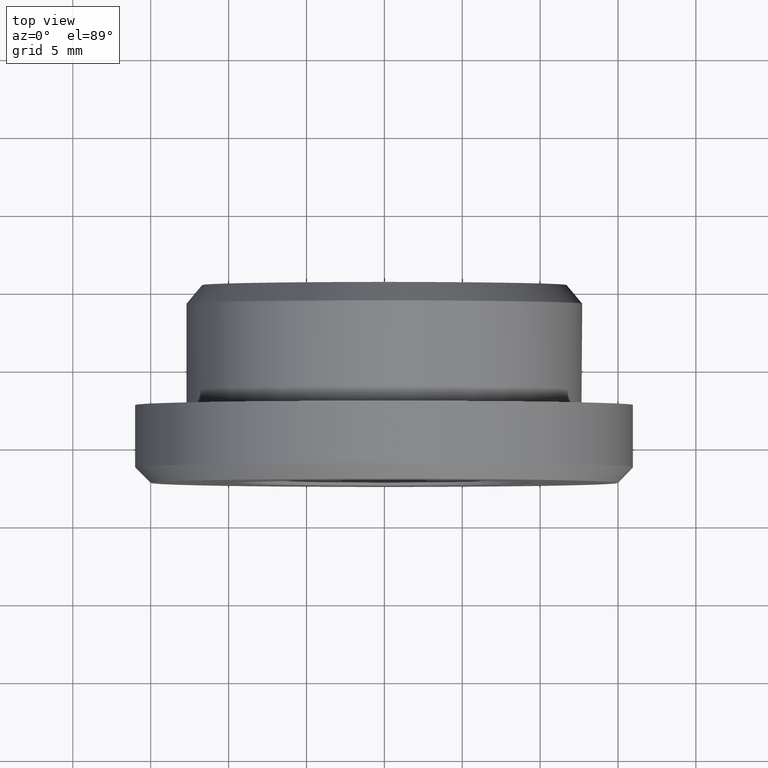
[diagram: clean part render]
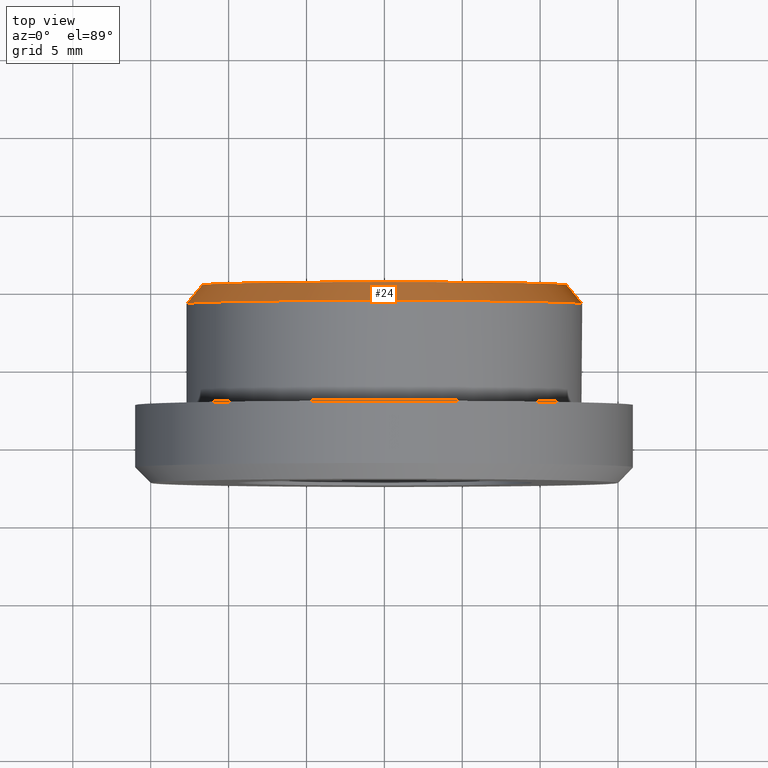
[diagram: same view with one face highlighted and labeled with its STEP entity id]
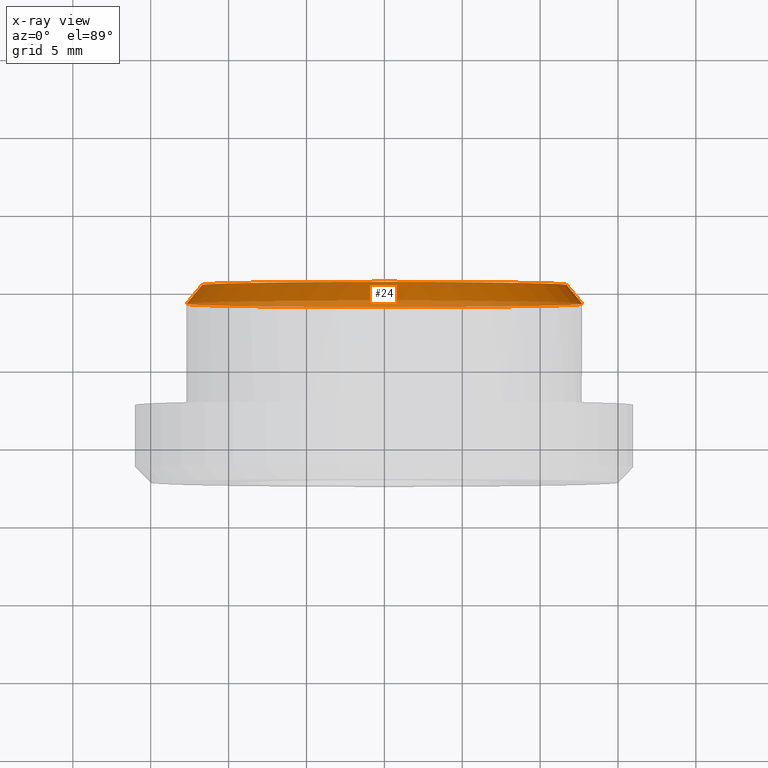
[diagram: x-ray of the same camera — body ghosted, the highlighted face saturated]
A machine part, top view. The second image highlights one B-rep face of the part: STEP entity #24.
The next image is the same camera in x-ray: the body ghosted, the highlighted face saturated — about 24% of this face is hidden behind the body in this view.
In plain terms, the highlighted conical surface has half-angle 39.806 deg.
Its self-contained STEP definition (entity closure, byte-faithful):
#13 = DIRECTION ( 'NONE',  ( 3.841661241090370459E-17, -1.000000000000000000, 4.268512490100414360E-18 ) ) ;
#18 = CARTESIAN_POINT ( 'NONE',  ( 11.70000000000005436, 0.3000000000000158651, -5.122214988120266275E-18 ) ) ;
#24 = ADVANCED_FACE ( 'NONE', ( #102, #192 ), #244, .T. ) ;
#32 = ORIENTED_EDGE ( 'NONE', *, *, #250, .T. ) ;
#47 = CIRCLE ( 'NONE', #301, 11.70000000000005436 ) ;
#72 = CARTESIAN_POINT ( 'NONE',  ( 2.082568731771776954E-33, -0.8999999999999305222, 2.313965257524198137E-34 ) ) ;
#79 = CIRCLE ( 'NONE', #85, 12.69999999999999929 ) ;
#85 = AXIS2_PLACEMENT_3D ( 'NONE', #110, #200, #288 ) ;
#88 = EDGE_LOOP ( 'NONE', ( #171 ) ) ;
#102 = FACE_BOUND ( 'NONE', #112, .T. ) ;
#110 = CARTESIAN_POINT ( 'NONE',  ( -2.219626494852238640E-16, -0.8999999999999286349, 0.000000000000000000 ) ) ;
#111 = DIRECTION ( 'NONE',  ( 1.000000000000000000, 3.706674093967519044E-17, 0.000000000000000000 ) ) ;
#112 = EDGE_LOOP ( 'NONE', ( #32 ) ) ;
#132 = DIRECTION ( 'NONE',  ( 1.000000000000000000, 4.268512490100410046E-17, 0.000000000000000000 ) ) ;
#171 = ORIENTED_EDGE ( 'NONE', *, *, #340, .F. ) ;
#178 = VERTEX_POINT ( 'NONE', #18 ) ;
#192 = FACE_OUTER_BOUND ( 'NONE', #88, .T. ) ;
#200 = DIRECTION ( 'NONE',  ( 3.414809992080329023E-17, -1.000000000000000000, -0.000000000000000000 ) ) ;
#244 = CONICAL_SURFACE ( 'NONE', #287, 12.70000000000000284, 0.6947382761967002551 ) ;
#246 = DIRECTION ( 'NONE',  ( 3.841661241090370459E-17, -1.000000000000000000, 4.268512490100414360E-18 ) ) ;
#250 = EDGE_CURVE ( 'NONE', #178, #178, #47, .T. ) ;
#255 = CARTESIAN_POINT ( 'NONE',  ( -4.609993489308236489E-17, 0.3000000000000154210, -5.122214988120266275E-18 ) ) ;
#274 = CARTESIAN_POINT ( 'NONE',  ( -12.69999999999999929, -0.8999999999999290790, 0.000000000000000000 ) ) ;
#276 = VERTEX_POINT ( 'NONE', #274 ) ;
#287 = AXIS2_PLACEMENT_3D ( 'NONE', #72, #246, #132 ) ;
#288 = DIRECTION ( 'NONE',  ( -1.000000000000000000, -3.414809992080329023E-17, 0.000000000000000000 ) ) ;
#301 = AXIS2_PLACEMENT_3D ( 'NONE', #255, #13, #111 ) ;
#340 = EDGE_CURVE ( 'NONE', #276, #276, #79, .T. ) ;